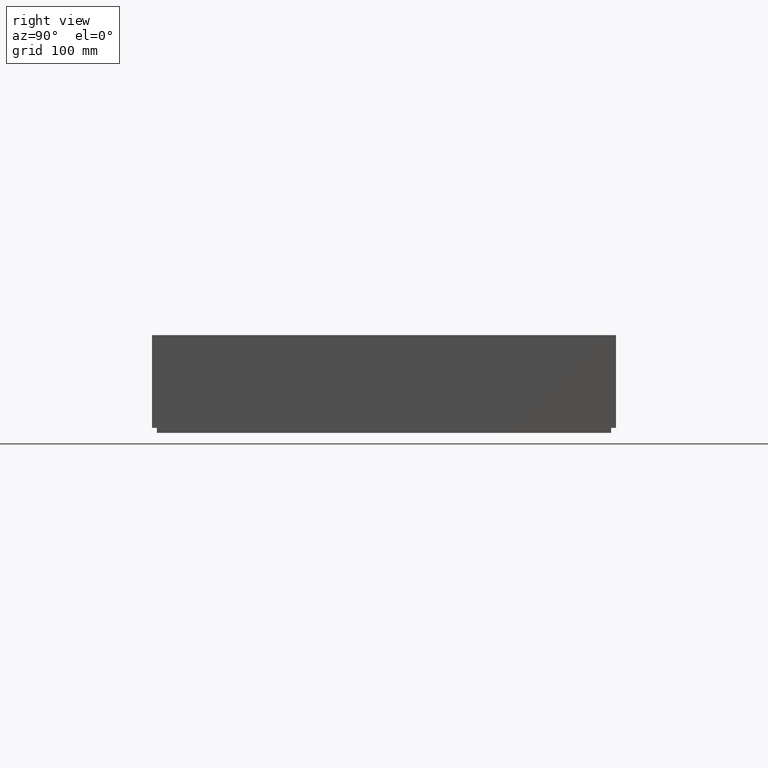
[diagram: clean part render]
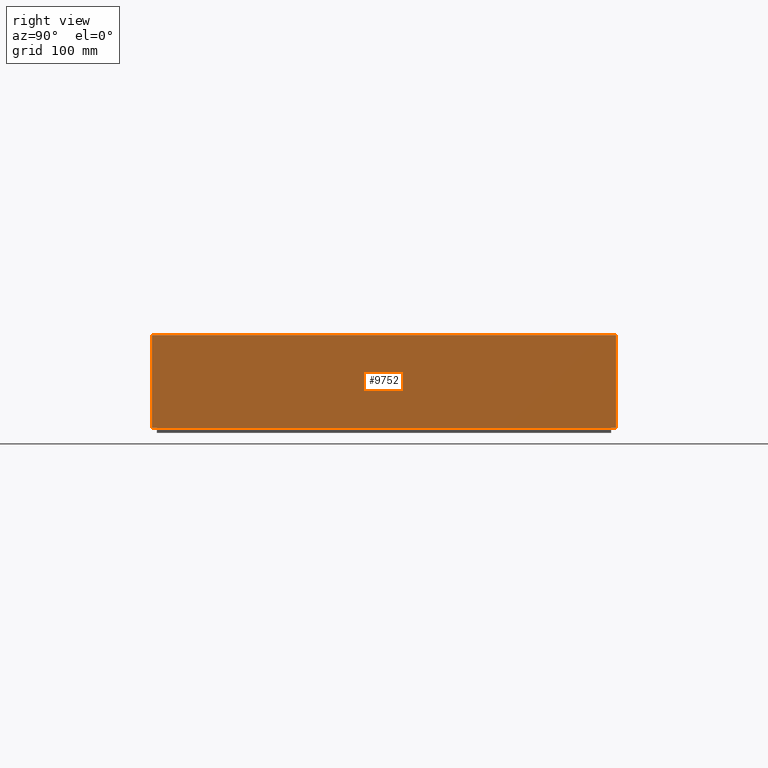
[diagram: same view with one face highlighted and labeled with its STEP entity id]
A machine part, right view. The second image highlights one B-rep face of the part: STEP entity #9752.
In plain terms, the highlighted planar face has unit normal (-1, 0, -0).
Its self-contained STEP definition (entity closure, byte-faithful):
#742 = EDGE_CURVE ( 'NONE', #3408, #6661, #5180, .T. ) ;
#755 = CARTESIAN_POINT ( 'NONE',  ( 900.0000000000000000, -1.665334536937734811E-13, 1.387778780781445676E-14 ) ) ;
#905 = DIRECTION ( 'NONE',  ( 1.734723475976807094E-18, 2.226637860094742016E-19, -1.000000000000000000 ) ) ;
#1121 = ORIENTED_EDGE ( 'NONE', *, *, #10176, .T. ) ;
#1281 = CARTESIAN_POINT ( 'NONE',  ( 900.0000000000000000, -5.551115123125782702E-14, -150.0000000000000284 ) ) ;
#2059 = DIRECTION ( 'NONE',  ( 2.710505431213760483E-20, -1.000000000000000000, 2.226637860094741535E-19 ) ) ;
#2317 = LINE ( 'NONE', #5763, #4306 ) ;
#2751 = CARTESIAN_POINT ( 'NONE',  ( 900.0000000000000000, 750.0000000000001137, -150.0000000000000284 ) ) ;
#2872 = CARTESIAN_POINT ( 'NONE',  ( 900.0000000000000000, 750.0000000000000000, -1.387778780781445676E-14 ) ) ;
#3181 = DIRECTION ( 'NONE',  ( -1.000000000000000000, 2.710505431213761687E-20, -1.734723475976807094E-18 ) ) ;
#3317 = ORIENTED_EDGE ( 'NONE', *, *, #9614, .F. ) ;
#3366 = VECTOR ( 'NONE', #905, 1000.000000000000000 ) ;
#3408 = VERTEX_POINT ( 'NONE', #2872 ) ;
#4035 = FACE_OUTER_BOUND ( 'NONE', #10539, .T. ) ;
#4040 = ORIENTED_EDGE ( 'NONE', *, *, #10822, .T. ) ;
#4186 = DIRECTION ( 'NONE',  ( 1.734723475976807094E-18, 2.226637860094742016E-19, -1.000000000000000000 ) ) ;
#4306 = VECTOR ( 'NONE', #9214, 1000.000000000000000 ) ;
#5180 = LINE ( 'NONE', #8631, #3366 ) ;
#5481 = VERTEX_POINT ( 'NONE', #1281 ) ;
#5763 = CARTESIAN_POINT ( 'NONE',  ( 900.0000000000000000, 900.2131818450033052, 0.0000000000000000000 ) ) ;
#6354 = LINE ( 'NONE', #9803, #10248 ) ;
#6486 = VECTOR ( 'NONE', #4186, 1000.000000000000000 ) ;
#6621 = ORIENTED_EDGE ( 'NONE', *, *, #742, .F. ) ;
#6626 = DIRECTION ( 'NONE',  ( -1.734723475976807094E-18, -2.226637860094742016E-19, 1.000000000000000000 ) ) ;
#6661 = VERTEX_POINT ( 'NONE', #2751 ) ;
#7483 = PLANE ( 'NONE',  #9163 ) ;
#8479 = LINE ( 'NONE', #755, #6486 ) ;
#8584 = CARTESIAN_POINT ( 'NONE',  ( 900.0000000000000000, -1.665334536937734811E-13, 1.387778780781445676E-14 ) ) ;
#8631 = CARTESIAN_POINT ( 'NONE',  ( 900.0000000000000000, 750.0000000000000000, -1.387778780781445676E-14 ) ) ;
#9163 = AXIS2_PLACEMENT_3D ( 'NONE', #10917, #3181, #6626 ) ;
#9214 = DIRECTION ( 'NONE',  ( 2.710505431213760483E-20, -1.000000000000000000, 2.226637860094741535E-19 ) ) ;
#9614 = EDGE_CURVE ( 'NONE', #6661, #5481, #6354, .T. ) ;
#9752 = ADVANCED_FACE ( 'NONE', ( #4035 ), #7483, .F. ) ;
#9803 = CARTESIAN_POINT ( 'NONE',  ( 900.0000000000000000, 900.2131818450034189, -150.0000000000000284 ) ) ;
#10176 = EDGE_CURVE ( 'NONE', #3408, #10868, #2317, .T. ) ;
#10248 = VECTOR ( 'NONE', #2059, 1000.000000000000000 ) ;
#10539 = EDGE_LOOP ( 'NONE', ( #6621, #1121, #4040, #3317 ) ) ;
#10822 = EDGE_CURVE ( 'NONE', #10868, #5481, #8479, .T. ) ;
#10868 = VERTEX_POINT ( 'NONE', #8584 ) ;
#10917 = CARTESIAN_POINT ( 'NONE',  ( 900.0000000000000000, 900.2131818450033052, 0.0000000000000000000 ) ) ;